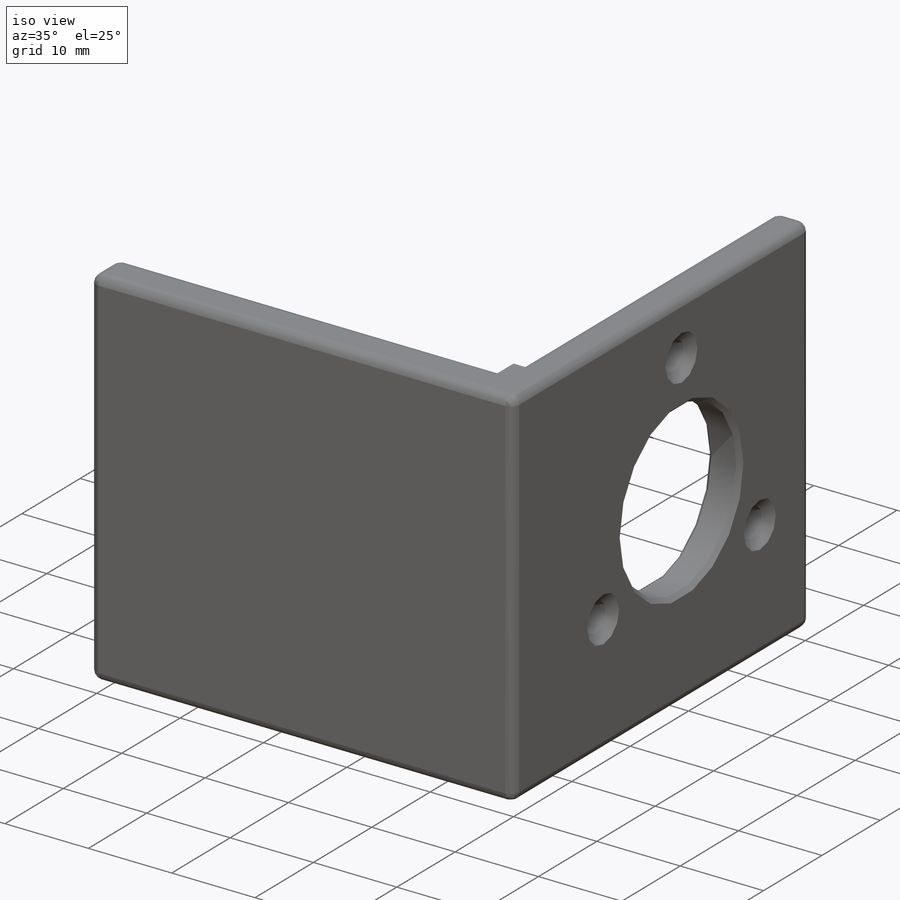
[diagram: iso view]
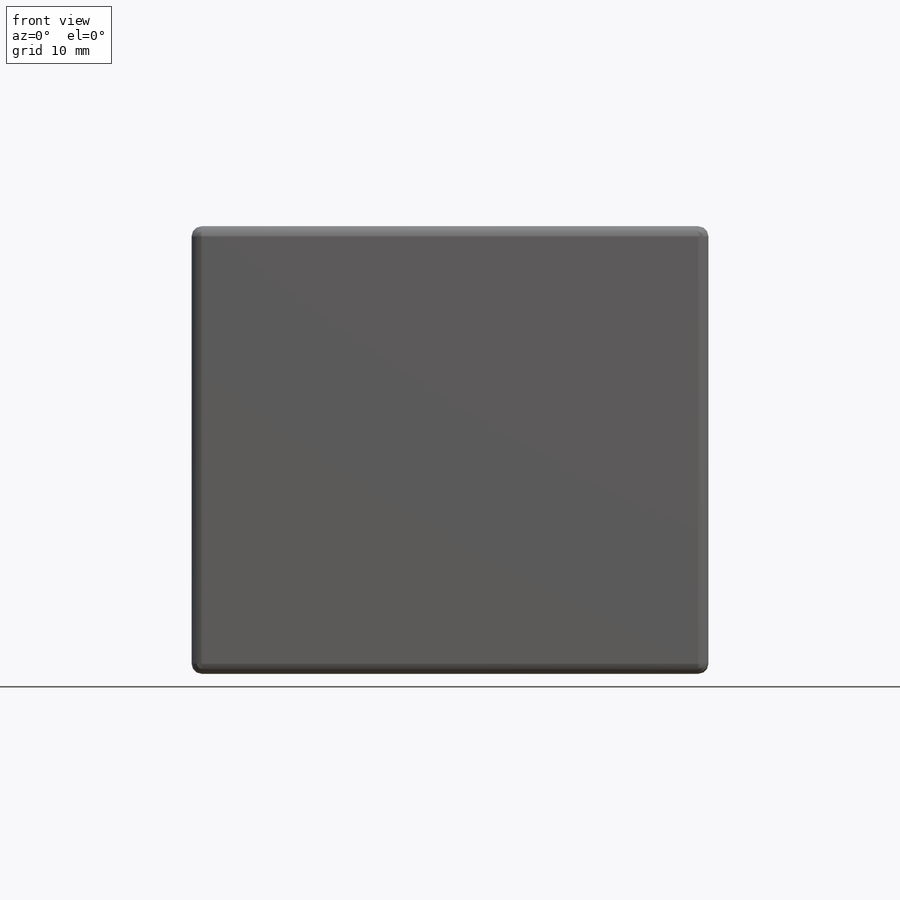
[diagram: front view]
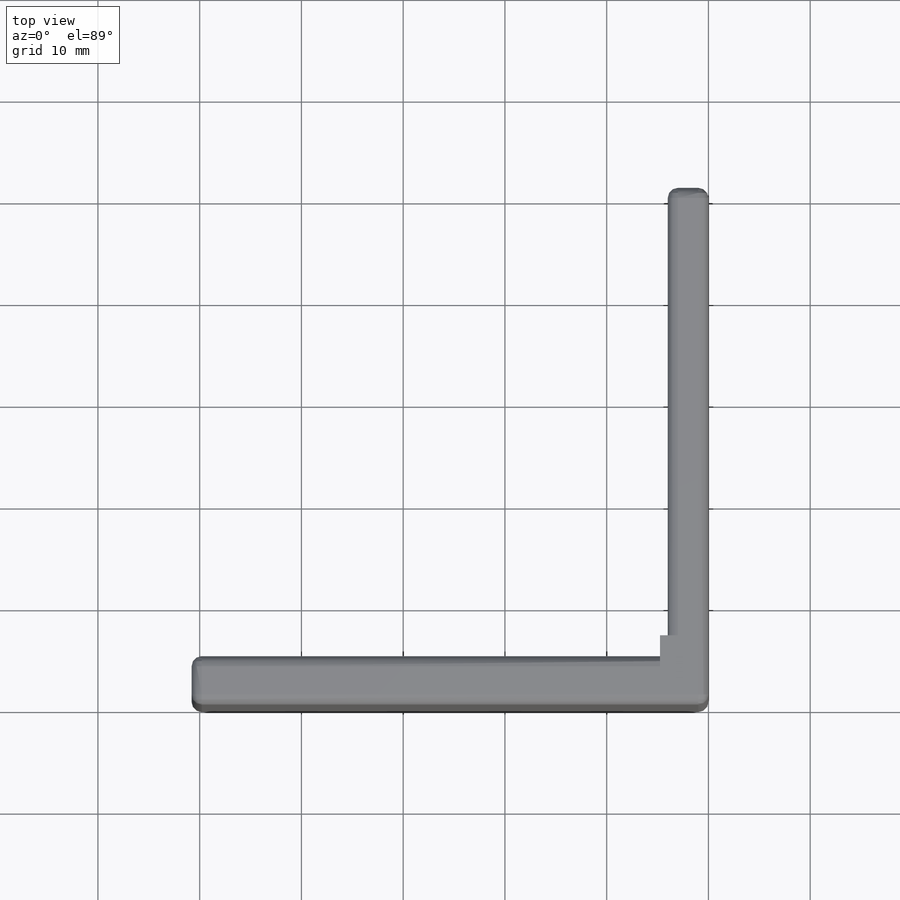
[diagram: top view]
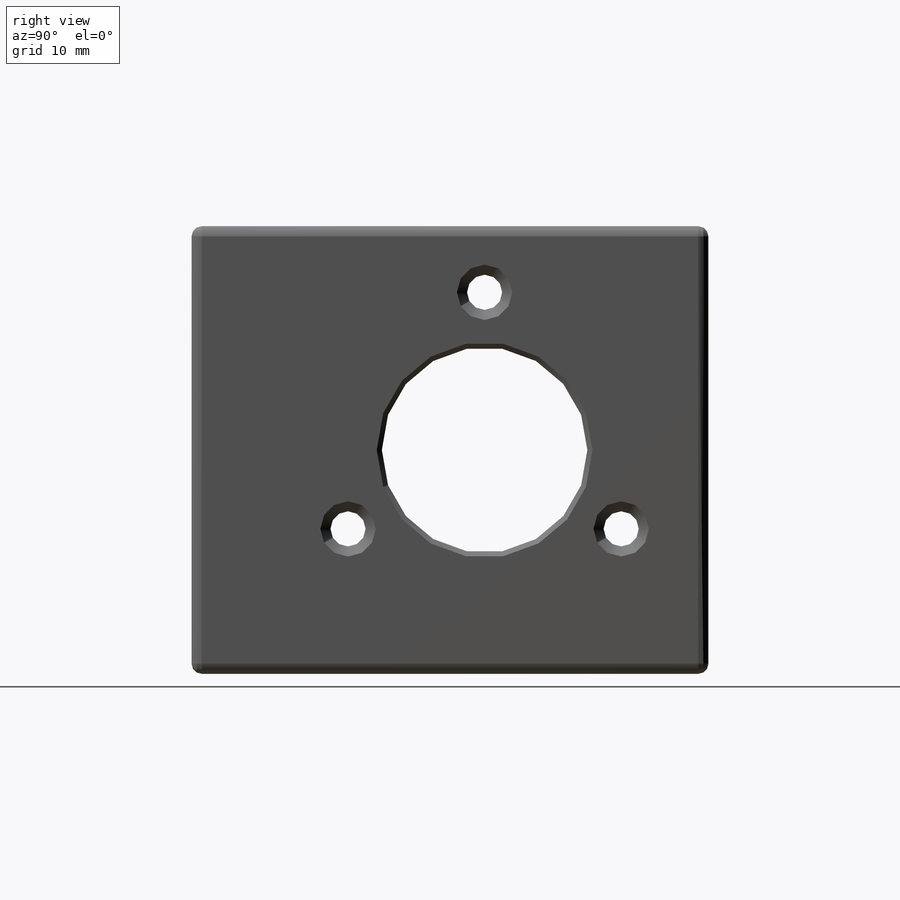
[diagram: right view]
SOLIDWORKS PART (.sldprt)
format: sldprt  version: not decoded by parser v0  size: 246,784 bytes
history: native  units: mm
features: sketch x4, plane x3, thread x3, material x1 (+20 scaffold rows collapsed; 3 parser-record rows omitted)
feature tree (34):
  scaffold x20  (default folders/planes/origin — collapsed)
  material  "Material <not specified>"
  plane  "Front-PIT_rail_hanger_ext_v3_Mirrored"
  plane  "Top-PIT_rail_hanger_ext_v3_Mirrored"
  plane  "Right-PIT_rail_hanger_ext_v3_Mirrored"
  sketch  "Sketch2-PIT_rail_hanger_ext_v3_Mirrored"  dims[D1=50.8mm]
  sketch  "Sketch3-PIT_rail_hanger_ext_v3_Mirrored"  dims[D1=44.0mm]
  sketch  "Sketch4-PIT_rail_hanger_ext_v3_Mirrored"  dims[D1=20.2mm]
  sketch  "Sketch5-PIT_rail_hanger_ext_v3_Mirrored"  dims[c1.D1=31.0mm c1.D2=15.5mm c2.D2=120.0deg c2.D3=15.5mm c3.D3=120.0deg]
  parser-record x3  (decoder bookkeeping rows leaked as tree rows — omitted from the tree; the rows remain in map.json)
  thread  "Hole Thread1-PIT_rail_hanger_ext_v3_Mirrored"  Diameter=4.1656mm  [1 undecoded]
  thread  "Hole Thread2-PIT_rail_hanger_ext_v3_Mirrored"  Diameter=4.1656mm  [1 undecoded]
  thread  "Hole Thread3-PIT_rail_hanger_ext_v3_Mirrored"  Diameter=4.1656mm  [1 undecoded]
decode coverage: 7 of 7 modeling features carry decoded parameters
note: 3 parameter values undecoded
note: suppression state not decoded; provenance and decode notes live in map.json
